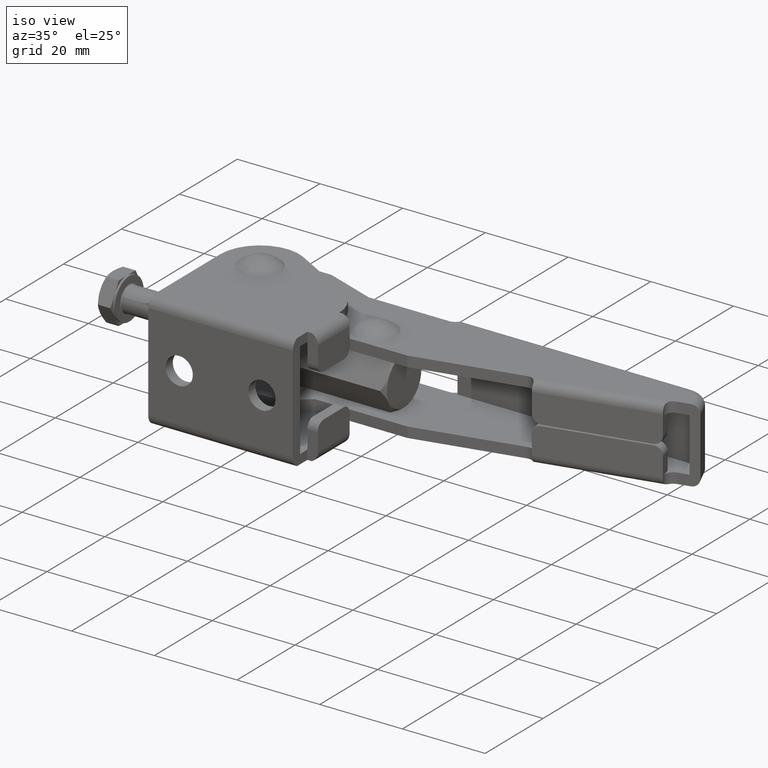
[diagram: clean part render]
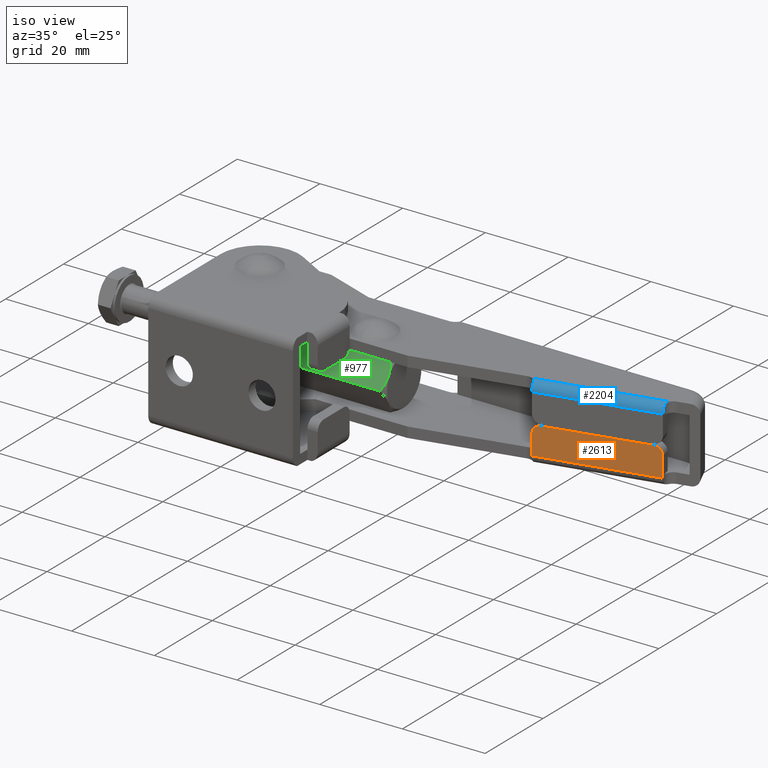
[diagram: same view with three faces highlighted in distinct colors, each labeled with its STEP entity id]
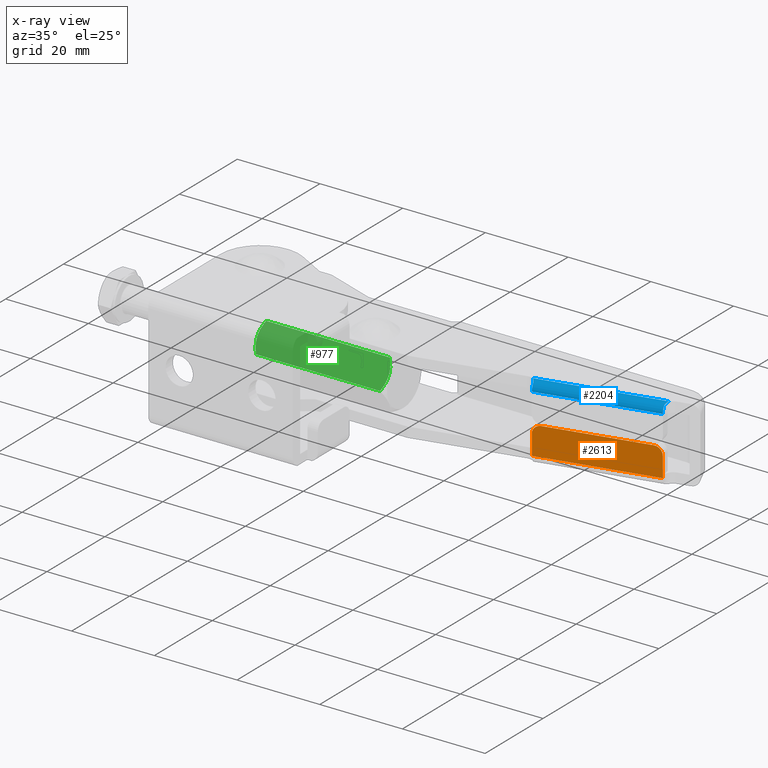
[diagram: x-ray of the same camera — body ghosted, the three highlighted faces saturated]
A machine part, iso view with three faces highlighted in distinct colors.
The next image is the same camera in x-ray (body ghosted, the three faces saturated) — at least one of them is partly hidden behind the body in this view.
Their STEP definitions:

[orange] entity #2613 — the highlighted planar face has unit normal (-0.225, 0.9744, 0).
#82 = CARTESIAN_POINT ( 'NONE',  ( 88.71615724700001200, 26.06645997999999800, -2.149999999999993700 ) ) ;
#130 = CARTESIAN_POINT ( 'NONE',  ( 61.43379543299999300, 19.76783045799999900, -7.749999999999997300 ) ) ;
#387 = VECTOR ( 'NONE', #2294, 1000.000000000000000 ) ;
#433 = LINE ( 'NONE', #3836, #1198 ) ;
#566 = CIRCLE ( 'NONE', #5415, 1.999999999999998200 ) ;
#606 = LINE ( 'NONE', #1271, #2065 ) ;
#706 = CIRCLE ( 'NONE', #7078, 1.999999999999998200 ) ;
#1035 = VERTEX_POINT ( 'NONE', #4977 ) ;
#1105 = DIRECTION ( 'NONE',  ( -0.0000000000000000000, -0.0000000000000000000, -1.000000000000000000 ) ) ;
#1198 = VECTOR ( 'NONE', #1105, 1000.000000000000000 ) ;
#1271 = CARTESIAN_POINT ( 'NONE',  ( 88.71615724700001200, 26.06645997999999800, -6.999999999999997300 ) ) ;
#1323 = LINE ( 'NONE', #4038, #6048 ) ;
#1353 = EDGE_CURVE ( 'NONE', #3448, #1035, #566, .T. ) ;
#1484 = CARTESIAN_POINT ( 'NONE',  ( 88.71615724700001200, 26.06645997999999800, -8.999999999999998200 ) ) ;
#1655 = CARTESIAN_POINT ( 'NONE',  ( 86.76741711743531500, 25.61655787128726700, -2.149999999999993700 ) ) ;
#1766 = LINE ( 'NONE', #130, #387 ) ;
#2006 = ORIENTED_EDGE ( 'NONE', *, *, #1353, .T. ) ;
#2038 = DIRECTION ( 'NONE',  ( -0.9743700647823491100, -0.2249510543563658900, 0.0000000000000000000 ) ) ;
#2065 = VECTOR ( 'NONE', #4571, 1000.000000000000100 ) ;
#2203 = DIRECTION ( 'NONE',  ( -0.9743700647823492200, -0.2249510543563661100, 0.0000000000000000000 ) ) ;
#2294 = DIRECTION ( 'NONE',  ( 0.0000000000000000000, 0.0000000000000000000, 1.000000000000000000 ) ) ;
#2502 = DIRECTION ( 'NONE',  ( 0.2249510543563659200, -0.9743700647823492200, -0.0000000000000000000 ) ) ;
#2613 = ADVANCED_FACE ( 'NONE', ( #2801 ), #4773, .F. ) ;
#2735 = CARTESIAN_POINT ( 'NONE',  ( 88.71615724700001200, 26.06645997999999800, -6.999999999999997300 ) ) ;
#2801 = FACE_OUTER_BOUND ( 'NONE', #4753, .T. ) ;
#2930 = DIRECTION ( 'NONE',  ( 0.9743700647823491100, 0.2249510543563658900, 2.449137035112062800E-016 ) ) ;
#3016 = ORIENTED_EDGE ( 'NONE', *, *, #6555, .F. ) ;
#3199 = EDGE_CURVE ( 'NONE', #4742, #5237, #706, .T. ) ;
#3299 = VERTEX_POINT ( 'NONE', #4867 ) ;
#3448 = VERTEX_POINT ( 'NONE', #82 ) ;
#3763 = ORIENTED_EDGE ( 'NONE', *, *, #3199, .T. ) ;
#3836 = CARTESIAN_POINT ( 'NONE',  ( 88.71615724700001200, 26.06645997999999800, -7.749999999999997300 ) ) ;
#3928 = EDGE_CURVE ( 'NONE', #3299, #4225, #606, .T. ) ;
#4038 = CARTESIAN_POINT ( 'NONE',  ( 60.89463843432054100, 19.64335625697489700, -0.1499999999999997700 ) ) ;
#4225 = VERTEX_POINT ( 'NONE', #2735 ) ;
#4571 = DIRECTION ( 'NONE',  ( 0.9743700647823491100, 0.2249510543563658900, -0.0000000000000000000 ) ) ;
#4682 = EDGE_CURVE ( 'NONE', #3448, #4225, #433, .T. ) ;
#4742 = VERTEX_POINT ( 'NONE', #6628 ) ;
#4753 = EDGE_LOOP ( 'NONE', ( #3016, #7049, #6942, #2006, #6847, #3763 ) ) ;
#4773 = PLANE ( 'NONE',  #5939 ) ;
#4867 = CARTESIAN_POINT ( 'NONE',  ( 61.43379543299999300, 19.76783045799999900, -6.999999999999997300 ) ) ;
#4977 = CARTESIAN_POINT ( 'NONE',  ( 86.76741711743531500, 25.61655787128726700, -0.1499999999999932800 ) ) ;
#5237 = VERTEX_POINT ( 'NONE', #6269 ) ;
#5316 = DIRECTION ( 'NONE',  ( -0.2249510543563659200, 0.9743700647823492200, 0.0000000000000000000 ) ) ;
#5415 = AXIS2_PLACEMENT_3D ( 'NONE', #1655, #5485, #2203 ) ;
#5485 = DIRECTION ( 'NONE',  ( 0.2249510543563659200, -0.9743700647823492200, -0.0000000000000000000 ) ) ;
#5779 = CARTESIAN_POINT ( 'NONE',  ( 63.38253556256469100, 20.21773256671273000, -2.149999999999998600 ) ) ;
#5939 = AXIS2_PLACEMENT_3D ( 'NONE', #1484, #5316, #2038 ) ;
#6048 = VECTOR ( 'NONE', #2930, 1000.000000000000200 ) ;
#6269 = CARTESIAN_POINT ( 'NONE',  ( 61.43379543299999300, 19.76783045799999900, -2.149999999999998600 ) ) ;
#6334 = DIRECTION ( 'NONE',  ( -0.9743700647823492200, -0.2249510543563661100, -8.673617379884043400E-016 ) ) ;
#6555 = EDGE_CURVE ( 'NONE', #3299, #5237, #1766, .T. ) ;
#6628 = CARTESIAN_POINT ( 'NONE',  ( 63.38253556256470500, 20.21773256671273000, -0.1499999999999991300 ) ) ;
#6636 = EDGE_CURVE ( 'NONE', #4742, #1035, #1323, .T. ) ;
#6847 = ORIENTED_EDGE ( 'NONE', *, *, #6636, .F. ) ;
#6942 = ORIENTED_EDGE ( 'NONE', *, *, #4682, .F. ) ;
#7049 = ORIENTED_EDGE ( 'NONE', *, *, #3928, .T. ) ;
#7078 = AXIS2_PLACEMENT_3D ( 'NONE', #5779, #2502, #6334 ) ;

[blue] entity #2204 — the highlighted cylindrical surface (edge-blend (fillet) strip) has radius 2 mm, axis along (-0.9744, -0.225, 0).
#31 = CARTESIAN_POINT ( 'NONE',  ( 13.22574101805603200, 10.69073235248056600, 7.000000000000004400 ) ) ;
#95 = DIRECTION ( 'NONE',  ( 0.9743700647823491100, 0.2249510543563658900, -0.0000000000000000000 ) ) ;
#273 = ORIENTED_EDGE ( 'NONE', *, *, #3980, .F. ) ;
#476 = FACE_OUTER_BOUND ( 'NONE', #6196, .T. ) ;
#521 = VERTEX_POINT ( 'NONE', #2849 ) ;
#560 = AXIS2_PLACEMENT_3D ( 'NONE', #31, #3845, #3300 ) ;
#590 = CARTESIAN_POINT ( 'NONE',  ( 88.26625513862092000, 28.01520010964172500, 7.000000000000004400 ) ) ;
#723 = CARTESIAN_POINT ( 'NONE',  ( 88.75856198612761700, 27.90154672568510800, 8.991916871770435200 ) ) ;
#793 = CARTESIAN_POINT ( 'NONE',  ( 61.32131990546213300, 20.25501549115686500, 8.322875656470005300 ) ) ;
#840 = B_SPLINE_CURVE_WITH_KNOTS ( 'NONE', 3,
 ( #5120, #4576, #723, #1828, #5657, #2374, #6214, #2937, #6767, #3483 ),
 .UNSPECIFIED., .F., .F.,
 ( 4, 2, 2, 2, 4 ),
 ( 0.0000000000000000000, 0.0004695840333571317200, 0.0009391680667142634400, 0.001408752100071395300, 0.001878336133428526900 ),
 .UNSPECIFIED. ) ;
#1130 = ORIENTED_EDGE ( 'NONE', *, *, #2851, .F. ) ;
#1140 = DIRECTION ( 'NONE',  ( 0.2249510541895359300, -0.9743700648208649700, 4.336808689942020100E-015 ) ) ;
#1532 = EDGE_CURVE ( 'NONE', #2562, #4737, #840, .T. ) ;
#1828 = CARTESIAN_POINT ( 'NONE',  ( 88.64101590663692300, 27.61253301648791600, 8.946687898231855800 ) ) ;
#1894 = CARTESIAN_POINT ( 'NONE',  ( 61.16215136108856900, 20.70745597108780300, 8.725424714254337700 ) ) ;
#2099 = CARTESIAN_POINT ( 'NONE',  ( 88.71615724700001200, 26.06645997999999800, 7.000000000000005300 ) ) ;
#2174 = AXIS2_PLACEMENT_3D ( 'NONE', #2387, #6222, #2949 ) ;
#2199 = ORIENTED_EDGE ( 'NONE', *, *, #5178, .F. ) ;
#2204 = ADVANCED_FACE ( 'NONE', ( #476 ), #4337, .T. ) ;
#2374 = CARTESIAN_POINT ( 'NONE',  ( 88.55430408614537900, 27.17400506971113600, 8.799800317933307500 ) ) ;
#2387 = CARTESIAN_POINT ( 'NONE',  ( 60.98389332462097900, 21.71657058764173700, 7.000000000000004400 ) ) ;
#2443 = CARTESIAN_POINT ( 'NONE',  ( 60.92729737667889400, 21.07174460204336000, 8.908561440051832000 ) ) ;
#2562 = VERTEX_POINT ( 'NONE', #6699 ) ;
#2653 = LINE ( 'NONE', #6876, #7020 ) ;
#2706 = CIRCLE ( 'NONE', #4706, 1.999999999999998900 ) ;
#2849 = CARTESIAN_POINT ( 'NONE',  ( 61.32131990546213300, 20.25501549115686500, 8.322875656470005300 ) ) ;
#2851 = EDGE_CURVE ( 'NONE', #4737, #6272, #2706, .T. ) ;
#2937 = CARTESIAN_POINT ( 'NONE',  ( 88.56145309603066100, 26.77403322319478100, 8.548060634955495700 ) ) ;
#2949 = DIRECTION ( 'NONE',  ( -0.2249510541895117200, 0.9743700648208705200, 0.0000000000000000000 ) ) ;
#3003 = CARTESIAN_POINT ( 'NONE',  ( 60.59397994581442500, 21.39641453500686200, 8.991569747175892900 ) ) ;
#3300 = DIRECTION ( 'NONE',  ( 0.2249510543563659200, -0.9743700647823492200, 0.0000000000000000000 ) ) ;
#3436 = VERTEX_POINT ( 'NONE', #4989 ) ;
#3483 = CARTESIAN_POINT ( 'NONE',  ( 88.60368172027251900, 26.55364501299249000, 8.322875656081695400 ) ) ;
#3547 = CARTESIAN_POINT ( 'NONE',  ( 60.32412363313899600, 21.56425075240090900, 9.000000000000005300 ) ) ;
#3580 = DIRECTION ( 'NONE',  ( -0.9743700647823491100, -0.2249510543563658900, -0.0000000000000000000 ) ) ;
#3598 = LINE ( 'NONE', #6650, #5067 ) ;
#3845 = DIRECTION ( 'NONE',  ( -0.9743700647823492200, -0.2249510543563659200, 0.0000000000000000000 ) ) ;
#3980 = EDGE_CURVE ( 'NONE', #521, #6508, #5176, .T. ) ;
#4056 = ORIENTED_EDGE ( 'NONE', *, *, #4752, .F. ) ;
#4082 = CARTESIAN_POINT ( 'NONE',  ( 61.29774158131733900, 20.35714443323387400, 8.441725095055142300 ) ) ;
#4337 = CYLINDRICAL_SURFACE ( 'NONE', #560, 2.000000000000000000 ) ;
#4434 = DIRECTION ( 'NONE',  ( 0.9743700648208643000, 0.2249510541895392300, -0.0000000000000000000 ) ) ;
#4490 = ORIENTED_EDGE ( 'NONE', *, *, #1532, .F. ) ;
#4576 = CARTESIAN_POINT ( 'NONE',  ( 88.83379981930006900, 28.03865569638994200, 9.000000000000003600 ) ) ;
#4636 = CIRCLE ( 'NONE', #2174, 1.999999999999998200 ) ;
#4706 = AXIS2_PLACEMENT_3D ( 'NONE', #590, #4434, #1140 ) ;
#4737 = VERTEX_POINT ( 'NONE', #6079 ) ;
#4752 = EDGE_CURVE ( 'NONE', #6508, #2562, #3598, .T. ) ;
#4989 = CARTESIAN_POINT ( 'NONE',  ( 61.43379543299999300, 19.76783045799999900, 7.000000000000005300 ) ) ;
#5067 = VECTOR ( 'NONE', #95, 1000.000000000000100 ) ;
#5120 = CARTESIAN_POINT ( 'NONE',  ( 88.92602483049599000, 28.16751994497331100, 9.000000000000005300 ) ) ;
#5176 = B_SPLINE_CURVE_WITH_KNOTS ( 'NONE', 3,
 ( #793, #4082, #5183, #1894, #5728, #2443, #6286, #3003, #6839, #3547 ),
 .UNSPECIFIED., .F., .F.,
 ( 4, 2, 2, 2, 4 ),
 ( 0.0000000000000000000, 0.0004695840331520906600, 0.0009391680663041813200, 0.001408752099456271900, 0.001878336132608362600 ),
 .UNSPECIFIED. ) ;
#5178 = EDGE_CURVE ( 'NONE', #3436, #521, #4636, .T. ) ;
#5183 = CARTESIAN_POINT ( 'NONE',  ( 61.26362057306839400, 20.46900592606193900, 8.545877394824060500 ) ) ;
#5271 = EDGE_CURVE ( 'NONE', #6272, #3436, #2653, .T. ) ;
#5657 = CARTESIAN_POINT ( 'NONE',  ( 88.60057703358117500, 27.46379957686428200, 8.909548841002463200 ) ) ;
#5728 = CARTESIAN_POINT ( 'NONE',  ( 61.09541027856763400, 20.83144496821951100, 8.798284885550515400 ) ) ;
#6079 = CARTESIAN_POINT ( 'NONE',  ( 88.60368172027251900, 26.55364501299249000, 8.322875656081695400 ) ) ;
#6196 = EDGE_LOOP ( 'NONE', ( #2199, #6267, #1130, #4490, #4056, #273 ) ) ;
#6214 = CARTESIAN_POINT ( 'NONE',  ( 88.54846484354227700, 27.03164560560154700, 8.726245155568586000 ) ) ;
#6222 = DIRECTION ( 'NONE',  ( -0.9743700648208704100, -0.2249510541895119700, 0.0000000000000000000 ) ) ;
#6267 = ORIENTED_EDGE ( 'NONE', *, *, #5271, .F. ) ;
#6272 = VERTEX_POINT ( 'NONE', #2099 ) ;
#6286 = CARTESIAN_POINT ( 'NONE',  ( 60.82471977065232900, 21.18907406435871700, 8.946274934701117200 ) ) ;
#6508 = VERTEX_POINT ( 'NONE', #6637 ) ;
#6637 = CARTESIAN_POINT ( 'NONE',  ( 60.32412363313899600, 21.56425075240090900, 9.000000000000005300 ) ) ;
#6650 = CARTESIAN_POINT ( 'NONE',  ( 88.26625513828727800, 28.01520010956469900, 9.000000000000005300 ) ) ;
#6699 = CARTESIAN_POINT ( 'NONE',  ( 88.92602483049599000, 28.16751994497331100, 9.000000000000005300 ) ) ;
#6767 = CARTESIAN_POINT ( 'NONE',  ( 88.58008795462836800, 26.65584083982630800, 8.441802929806604200 ) ) ;
#6839 = CARTESIAN_POINT ( 'NONE',  ( 60.46359657416910900, 21.48880774123681900, 9.000000000000005300 ) ) ;
#6876 = CARTESIAN_POINT ( 'NONE',  ( 61.43379543300000700, 19.76783045799999900, 7.000000000000004400 ) ) ;
#7020 = VECTOR ( 'NONE', #3580, 1000.000000000000100 ) ;

[green] entity #977 — the highlighted planar face has unit normal (0, 0.866, -0.5).
#258 = B_SPLINE_CURVE_WITH_KNOTS ( 'NONE', 3,
 ( #5225, #832, #4151, #859, #4705, #1410, #5250, #1963, #5794, #2530, #6354, #3072 ),
 .UNSPECIFIED., .F., .F.,
 ( 4, 2, 2, 2, 2, 4 ),
 ( 1.252419851887135600E-012, 0.001789140529644884900, 0.002683710793841115000, 0.003578281058037344500, 0.005367421586429803800, 0.007156562114822261100 ),
 .UNSPECIFIED. ) ;
#462 = CARTESIAN_POINT ( 'NONE',  ( 28.50078679309861900, 17.98847392925076200, 5.051833029298880000 ) ) ;
#789 = VERTEX_POINT ( 'NONE', #4460 ) ;
#832 = CARTESIAN_POINT ( 'NONE',  ( -2.270659812564740600, 18.26523857284837900, 5.531203450938934700 ) ) ;
#859 = CARTESIAN_POINT ( 'NONE',  ( -2.747390084556800400, 17.55847831832244000, 4.307058784109783800 ) ) ;
#977 = ADVANCED_FACE ( 'NONE', ( #2024 ), #5910, .F. ) ;
#1002 = CARTESIAN_POINT ( 'NONE',  ( 28.81298669580679900, 17.41264557397713700, 4.054469061486473800 ) ) ;
#1058 = LINE ( 'NONE', #2830, #3998 ) ;
#1410 = CARTESIAN_POINT ( 'NONE',  ( -2.903243890769099200, 17.11481452979233000, 3.538610560866582300 ) ) ;
#1564 = CARTESIAN_POINT ( 'NONE',  ( 28.92754703263083000, 16.96142643024023400, 3.272934579155347000 ) ) ;
#1963 = CARTESIAN_POINT ( 'NONE',  ( -2.929474980131220500, 16.50781593594744800, 2.487258156162589300 ) ) ;
#2024 = FACE_OUTER_BOUND ( 'NONE', #3892, .T. ) ;
#2108 = CARTESIAN_POINT ( 'NONE',  ( 28.83789456342838900, 16.21057268639435700, 1.972417745709274000 ) ) ;
#2423 = EDGE_CURVE ( 'NONE', #3601, #6933, #6226, .T. ) ;
#2458 = B_SPLINE_CURVE_WITH_KNOTS ( 'NONE', 3,
 ( #7028, #3195, #462, #4298, #1002, #4843, #1564, #5388, #2108, #5952, #2675, #6500 ),
 .UNSPECIFIED., .F., .F.,
 ( 4, 2, 2, 2, 2, 4 ),
 ( 1.608871309413542500E-012, 0.001789140530223377200, 0.002683710794530627700, 0.003578281058837879400, 0.005367421587452377400, 0.007156562116066877500 ),
 .UNSPECIFIED. ) ;
#2530 = CARTESIAN_POINT ( 'NONE',  ( -2.505696150187370500, 15.62437333849011300, 0.9570906917350087100 ) ) ;
#2622 = AXIS2_PLACEMENT_3D ( 'NONE', #6466, #5353, #3720 ) ;
#2675 = CARTESIAN_POINT ( 'NONE',  ( 28.27225298233625800, 15.34404975206000000, 0.4715559974588053900 ) ) ;
#2740 = ORIENTED_EDGE ( 'NONE', *, *, #2423, .T. ) ;
#2830 = CARTESIAN_POINT ( 'NONE',  ( 12.99999999999999800, 15.07179677000000100, 3.541791424061227200E-015 ) ) ;
#2881 = EDGE_CURVE ( 'NONE', #789, #7082, #1058, .T. ) ;
#3072 = CARTESIAN_POINT ( 'NONE',  ( -1.999999998981028600, 15.07179676898102900, 1.764917763489476400E-009 ) ) ;
#3195 = CARTESIAN_POINT ( 'NONE',  ( 28.27065981243236300, 18.26523857280054500, 5.531203452280327500 ) ) ;
#3297 = VECTOR ( 'NONE', #6576, 1000.000000000000000 ) ;
#3585 = CARTESIAN_POINT ( 'NONE',  ( -1.999999998981028600, 15.07179676898102900, 1.764917763489476400E-009 ) ) ;
#3601 = VERTEX_POINT ( 'NONE', #5659 ) ;
#3720 = DIRECTION ( 'NONE',  ( 0.0000000000000000000, 0.4999999999850876500, 0.8660254037930482700 ) ) ;
#3741 = EDGE_CURVE ( 'NONE', #6933, #7082, #258, .T. ) ;
#3892 = EDGE_LOOP ( 'NONE', ( #2740, #6380, #4099, #6691 ) ) ;
#3998 = VECTOR ( 'NONE', #5008, 1000.000000000000000 ) ;
#4099 = ORIENTED_EDGE ( 'NONE', *, *, #2881, .F. ) ;
#4151 = CARTESIAN_POINT ( 'NONE',  ( -2.500786793335902000, 17.98847392892433900, 5.051833028733505600 ) ) ;
#4298 = CARTESIAN_POINT ( 'NONE',  ( 28.74739008441906700, 17.55847831860624800, 4.307058784601352400 ) ) ;
#4460 = CARTESIAN_POINT ( 'NONE',  ( 27.99999999896055800, 15.07179676896056400, 1.800362669693105900E-009 ) ) ;
#4705 = CARTESIAN_POINT ( 'NONE',  ( -2.812986695913148000, 17.41264557370727000, 4.054469061019047700 ) ) ;
#4843 = CARTESIAN_POINT ( 'NONE',  ( 28.90324389072016600, 17.11481453003483800, 3.538610561286617400 ) ) ;
#4906 = CARTESIAN_POINT ( 'NONE',  ( -1.999999998882982200, 18.53589838466783500, 6.000000000859454700 ) ) ;
#4919 = CARTESIAN_POINT ( 'NONE',  ( 12.99999999999999800, 18.53589838500000300, 6.000000000000003600 ) ) ;
#5008 = DIRECTION ( 'NONE',  ( -1.000000000000000000, -0.0000000000000000000, -0.0000000000000000000 ) ) ;
#5225 = CARTESIAN_POINT ( 'NONE',  ( -1.999999998882982200, 18.53589838466783500, 6.000000000859454700 ) ) ;
#5250 = CARTESIAN_POINT ( 'NONE',  ( -2.927547032652650900, 16.96142643001395100, 3.272934578763413000 ) ) ;
#5353 = DIRECTION ( 'NONE',  ( 0.0000000000000000000, 0.8660254037930482700, -0.4999999999850876500 ) ) ;
#5388 = CARTESIAN_POINT ( 'NONE',  ( 28.92947498017221300, 16.50781593611551700, 2.487258156453683500 ) ) ;
#5446 = EDGE_CURVE ( 'NONE', #3601, #789, #2458, .T. ) ;
#5659 = CARTESIAN_POINT ( 'NONE',  ( 27.99999999903659600, 18.53589838575677000, 6.000000001310764800 ) ) ;
#5794 = CARTESIAN_POINT ( 'NONE',  ( -2.837894563370450700, 16.21057268626178400, 1.972417745479647000 ) ) ;
#5910 = PLANE ( 'NONE',  #2622 ) ;
#5952 = CARTESIAN_POINT ( 'NONE',  ( 28.50569615024237500, 15.62437333855688200, 0.9570906918506512100 ) ) ;
#6226 = LINE ( 'NONE', #4919, #3297 ) ;
#6354 = CARTESIAN_POINT ( 'NONE',  ( -2.272252983355235400, 15.34404975321558200, 0.4715559994603409400 ) ) ;
#6380 = ORIENTED_EDGE ( 'NONE', *, *, #3741, .T. ) ;
#6466 = CARTESIAN_POINT ( 'NONE',  ( -3.158132727000003000, 15.07179677000000100, 3.541791424061227200E-015 ) ) ;
#6500 = CARTESIAN_POINT ( 'NONE',  ( 27.99999999896055800, 15.07179676896056400, 1.800362669693105900E-009 ) ) ;
#6576 = DIRECTION ( 'NONE',  ( -1.000000000000000000, 0.0000000000000000000, 0.0000000000000000000 ) ) ;
#6691 = ORIENTED_EDGE ( 'NONE', *, *, #5446, .F. ) ;
#6933 = VERTEX_POINT ( 'NONE', #4906 ) ;
#7028 = CARTESIAN_POINT ( 'NONE',  ( 27.99999999903659600, 18.53589838575677000, 6.000000001310764800 ) ) ;
#7082 = VERTEX_POINT ( 'NONE', #3585 ) ;